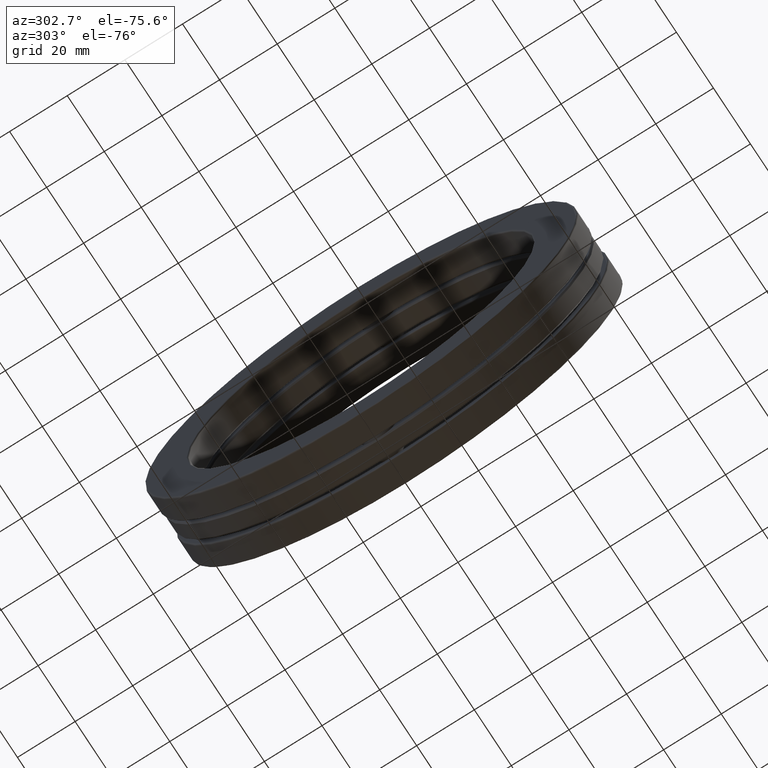
[diagram: clean part render]
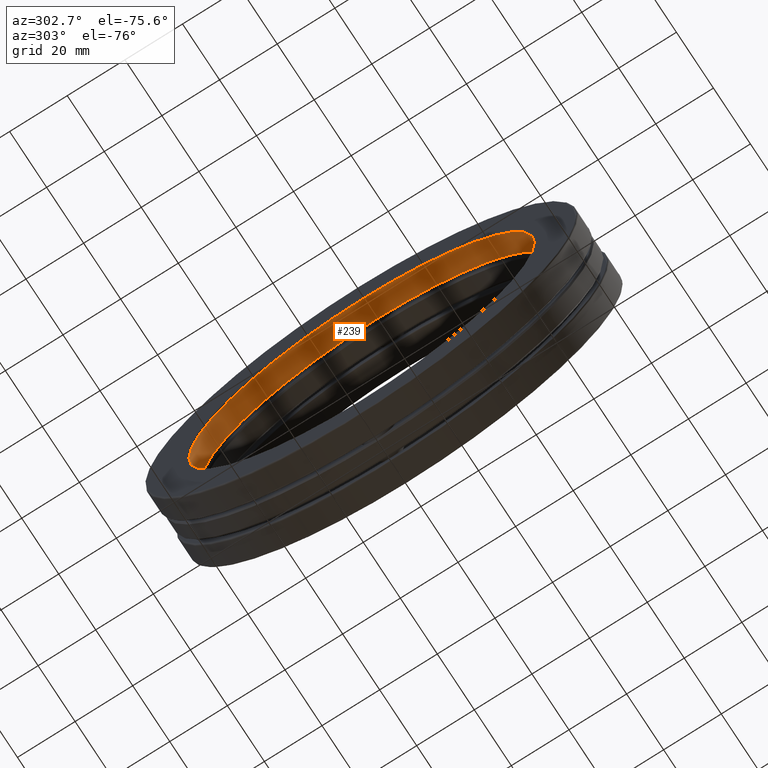
[diagram: same view with one face highlighted and labeled with its STEP entity id]
A machine part, auxiliary view. The second image highlights one B-rep face of the part: STEP entity #239.
In plain terms, the highlighted cylindrical surface (bore or boss wall) has radius 59.9948 mm, axis along (-1, -0, -0).
Its self-contained STEP definition (entity closure, byte-faithful):
#34 = EDGE_CURVE ( 'NONE', #757, #757, #790, .T. ) ;
#75 = AXIS2_PLACEMENT_3D ( 'NONE', #400, #140, #549 ) ;
#97 = DIRECTION ( 'NONE',  ( -1.000000000000000000, -0.0000000000000000000, -0.0000000000000000000 ) ) ;
#100 = CIRCLE ( 'NONE', #75, 2.362000000000000100 ) ;
#121 = CARTESIAN_POINT ( 'NONE',  ( 0.0000000000000000000, 0.0000000000000000000, 0.0000000000000000000 ) ) ;
#140 = DIRECTION ( 'NONE',  ( -1.000000000000000000, -0.0000000000000000000, -0.0000000000000000000 ) ) ;
#145 = FACE_OUTER_BOUND ( 'NONE', #197, .T. ) ;
#147 = ORIENTED_EDGE ( 'NONE', *, *, #674, .F. ) ;
#171 = EDGE_LOOP ( 'NONE', ( #717 ) ) ;
#197 = EDGE_LOOP ( 'NONE', ( #147 ) ) ;
#239 = ADVANCED_FACE ( 'NONE', ( #641, #145 ), #382, .F. ) ;
#359 = CARTESIAN_POINT ( 'NONE',  ( -0.4719999999999998600, 0.0000000000000000000, 0.0000000000000000000 ) ) ;
#382 = CYLINDRICAL_SURFACE ( 'NONE', #796, 2.362000000000000100 ) ;
#400 = CARTESIAN_POINT ( 'NONE',  ( -0.1840032799999996300, 0.0000000000000000000, 0.0000000000000000000 ) ) ;
#549 = DIRECTION ( 'NONE',  ( 0.0000000000000000000, 0.0000000000000000000, 1.000000000000000000 ) ) ;
#572 = DIRECTION ( 'NONE',  ( 0.0000000000000000000, 0.0000000000000000000, 1.000000000000000000 ) ) ;
#594 = DIRECTION ( 'NONE',  ( 0.0000000000000000000, 0.0000000000000000000, 1.000000000000000000 ) ) ;
#604 = CARTESIAN_POINT ( 'NONE',  ( -0.4719999999999998600, 0.0000000000000000000, 2.361999999999999700 ) ) ;
#617 = VERTEX_POINT ( 'NONE', #667 ) ;
#641 = FACE_OUTER_BOUND ( 'NONE', #171, .T. ) ;
#667 = CARTESIAN_POINT ( 'NONE',  ( -0.1840032799999996300, 0.0000000000000000000, 2.362000000000000100 ) ) ;
#674 = EDGE_CURVE ( 'NONE', #617, #617, #100, .T. ) ;
#704 = DIRECTION ( 'NONE',  ( -1.000000000000000000, -0.0000000000000000000, -0.0000000000000000000 ) ) ;
#717 = ORIENTED_EDGE ( 'NONE', *, *, #34, .T. ) ;
#757 = VERTEX_POINT ( 'NONE', #604 ) ;
#790 = CIRCLE ( 'NONE', #820, 2.361999999999999700 ) ;
#796 = AXIS2_PLACEMENT_3D ( 'NONE', #121, #704, #594 ) ;
#820 = AXIS2_PLACEMENT_3D ( 'NONE', #359, #97, #572 ) ;